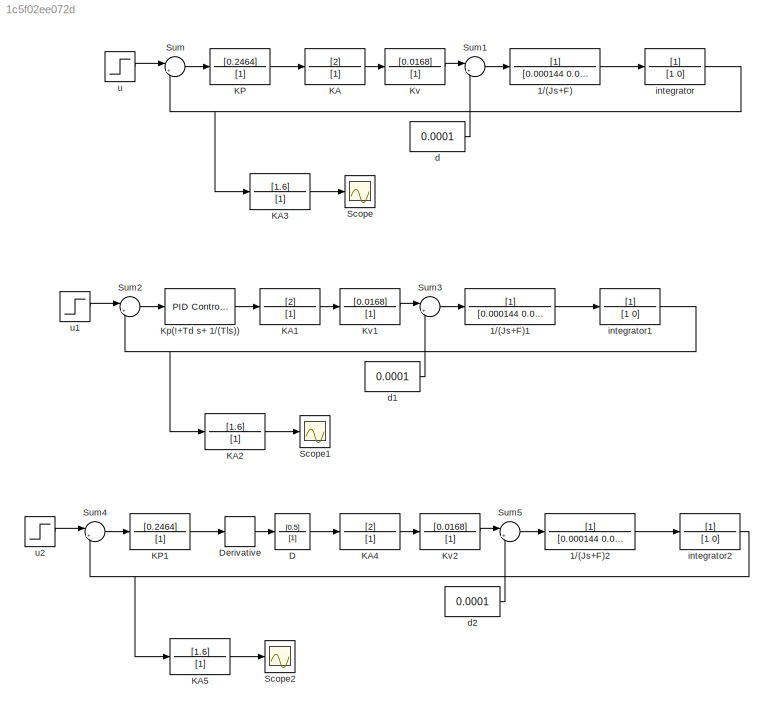
MODEL slx_1c5f02ee072d
KIND model
CONFIG AbsTol = auto
CONFIG FixedStep = auto
CONFIG MaxStep = auto
CONFIG MinStep = auto
CONFIG RelTol = 1e-3
CONFIG SampleTimeConstraint = Unconstrained
CONFIG Solver = VariableStepAuto
CONFIG SolverMode = Auto
CONFIG SolverName = VariableStepAuto
CONFIG StartTime = 0.0
CONFIG StopTime = 2
BLOCK [TransferFcn]  KP
  Denominator = [1]
  Numerator = [0.2464]
BLOCK [TransferFcn]  KP1
  Denominator = [1]
  Numerator = [0.2464]
BLOCK [TransferFcn] 1//(Js+F)
  Denominator = [0.000144 0.0011]
BLOCK [TransferFcn] 1//(Js+F)1
  Denominator = [0.000144 0.0011]
BLOCK [TransferFcn] 1//(Js+F)2
  Denominator = [0.000144 0.0011]
BLOCK [TransferFcn] D
  Denominator = [1]
  Numerator = [0.5]
BLOCK [Derivative] Derivative
BLOCK [TransferFcn] KA
  Denominator = [1]
  Numerator = [2]
BLOCK [TransferFcn] KA1
  Denominator = [1]
  Numerator = [2]
BLOCK [TransferFcn] KA2
  Denominator = [1]
  Numerator = [1.6]
BLOCK [TransferFcn] KA3
  Denominator = [1]
  Numerator = [1.6]
BLOCK [TransferFcn] KA4
  Denominator = [1]
  Numerator = [2]
BLOCK [TransferFcn] KA5
  Denominator = [1]
  Numerator = [1.6]
BLOCK [Reference] Kp(!+Td s+ 1//(Tls))  REF=simulink/Continuous/PID Controller
  Ports = [1, 1]
  SourceBlock = simulink/Continuous/PID Controller
  SourceType = PID 1dof
BLOCK [TransferFcn] Kv
  Denominator = [1]
  Numerator = [0.0168]
BLOCK [TransferFcn] Kv1
  Denominator = [1]
  Numerator = [0.0168]
BLOCK [TransferFcn] Kv2
  Denominator = [1]
  Numerator = [0.0168]
BLOCK [Scope] Scope
  Ports = [1]
  ScopeSpecificationString = Simulink.scopes.TimeScopeBlockCfg('CurrentConfiguration', extmgr.ConfigurationSet(extmgr.Configuration('Core','General UI',true),extmgr.Configuration('Core','Source UI',true),extmgr.Configuration('Sources','WiredSimulink',true),extmgr.Configuration('Visuals','Time Domain',true,'SerializedDisplays',{struct('MinYLimReal','-0.22935','MaxYLimReal','2.06411','YLabelReal','','MinYLimMag','0.00000','MaxY...<+1470ch>
BLOCK [Scope] Scope1
  Ports = [1]
  ScopeSpecificationString = Simulink.scopes.TimeScopeBlockCfg('CurrentConfiguration', extmgr.ConfigurationSet(extmgr.Configuration('Core','General UI',true),extmgr.Configuration('Core','Source UI',true),extmgr.Configuration('Sources','WiredSimulink',true,'DataLoggingVariableName','ScopeData1'),extmgr.Configuration('Visuals','Time Domain',true,'SerializedDisplays',{struct('MinYLimReal','-0.22945','MaxYLimReal','2.06506','YLab...<+1510ch>
BLOCK [Scope] Scope2
  Ports = [1]
  ScopeSpecificationString = Simulink.scopes.TimeScopeBlockCfg('CurrentConfiguration', extmgr.ConfigurationSet(extmgr.Configuration('Core','General UI',true),extmgr.Configuration('Core','Source UI',true),extmgr.Configuration('Sources','WiredSimulink',true,'DataLoggingVariableName','ScopeData1'),extmgr.Configuration('Visuals','Time Domain',true,'SerializedDisplays',{struct('MinYLimReal','-0.06785','MaxYLimReal','0.00754','YLab...<+1512ch>
BLOCK [Sum] Sum
  IconShape = round
  InputSameDT = off
  Inputs = |+-
  OutDataTypeStr = Inherit: Inherit via internal rule
  Ports = [2, 1]
  SaturateOnIntegerOverflow = off
BLOCK [Sum] Sum1
  IconShape = round
  InputSameDT = off
  Inputs = |+-
  OutDataTypeStr = Inherit: Inherit via internal rule
  Ports = [2, 1]
  SaturateOnIntegerOverflow = off
BLOCK [Sum] Sum2
  IconShape = round
  InputSameDT = off
  Inputs = |+-
  OutDataTypeStr = Inherit: Inherit via internal rule
  Ports = [2, 1]
  SaturateOnIntegerOverflow = off
BLOCK [Sum] Sum3
  IconShape = round
  InputSameDT = off
  Inputs = |+-
  OutDataTypeStr = Inherit: Inherit via internal rule
  Ports = [2, 1]
  SaturateOnIntegerOverflow = off
BLOCK [Sum] Sum4
  IconShape = round
  InputSameDT = off
  Inputs = |+-
  OutDataTypeStr = Inherit: Inherit via internal rule
  Ports = [2, 1]
  SaturateOnIntegerOverflow = off
BLOCK [Sum] Sum5
  IconShape = round
  InputSameDT = off
  Inputs = |+-
  OutDataTypeStr = Inherit: Inherit via internal rule
  Ports = [2, 1]
  SaturateOnIntegerOverflow = off
BLOCK [Constant] d
  Value = 0.0001
BLOCK [Constant] d1
  Value = 0.0001
BLOCK [Constant] d2
  Value = 0.0001
BLOCK [TransferFcn] integrator
  Denominator = [1 0]
BLOCK [TransferFcn] integrator1
  Denominator = [1 0]
BLOCK [TransferFcn] integrator2
  Denominator = [1 0]
BLOCK [Step] u
  SampleTime = 0
  Time = 0
BLOCK [Step] u1
  SampleTime = 0
  Time = 0
BLOCK [Step] u2
  SampleTime = 0
  Time = 0
LINE  KP1:1 -> Derivative:1
LINE  KP:1 -> KA:1
LINE 1//(Js+F)1:1 -> integrator1:1
LINE 1//(Js+F)2:1 -> integrator2:1
LINE 1//(Js+F):1 -> integrator:1
LINE D:1 -> KA4:1
LINE Derivative:1 -> D:1
LINE KA1:1 -> Kv1:1
LINE KA2:1 -> Scope1:1
LINE KA3:1 -> Scope:1
LINE KA4:1 -> Kv2:1
LINE KA5:1 -> Scope2:1
LINE KA:1 -> Kv:1
LINE Kp(!+Td s+ 1//(Tls)):1 -> KA1:1
LINE Kv1:1 -> Sum3:1
LINE Kv2:1 -> Sum5:1
LINE Kv:1 -> Sum1:1
LINE Sum1:1 -> 1//(Js+F):1
LINE Sum2:1 -> Kp(!+Td s+ 1//(Tls)):1
LINE Sum3:1 -> 1//(Js+F)1:1
LINE Sum4:1 ->  KP1:1
LINE Sum5:1 -> 1//(Js+F)2:1
LINE Sum:1 ->  KP:1
LINE d1:1 -> Sum3:2
LINE d2:1 -> Sum5:2
LINE d:1 -> Sum1:2
NET integrator1:1 -> KA2:1, Sum2:2
NET integrator2:1 -> KA5:1, Sum4:2
NET integrator:1 -> KA3:1, Sum:2
LINE u1:1 -> Sum2:1
LINE u2:1 -> Sum4:1
LINE u:1 -> Sum:1
note: NET lines group one-source signal fan-out (src -> all destinations, sorted); 1:1 wires keep LINE
